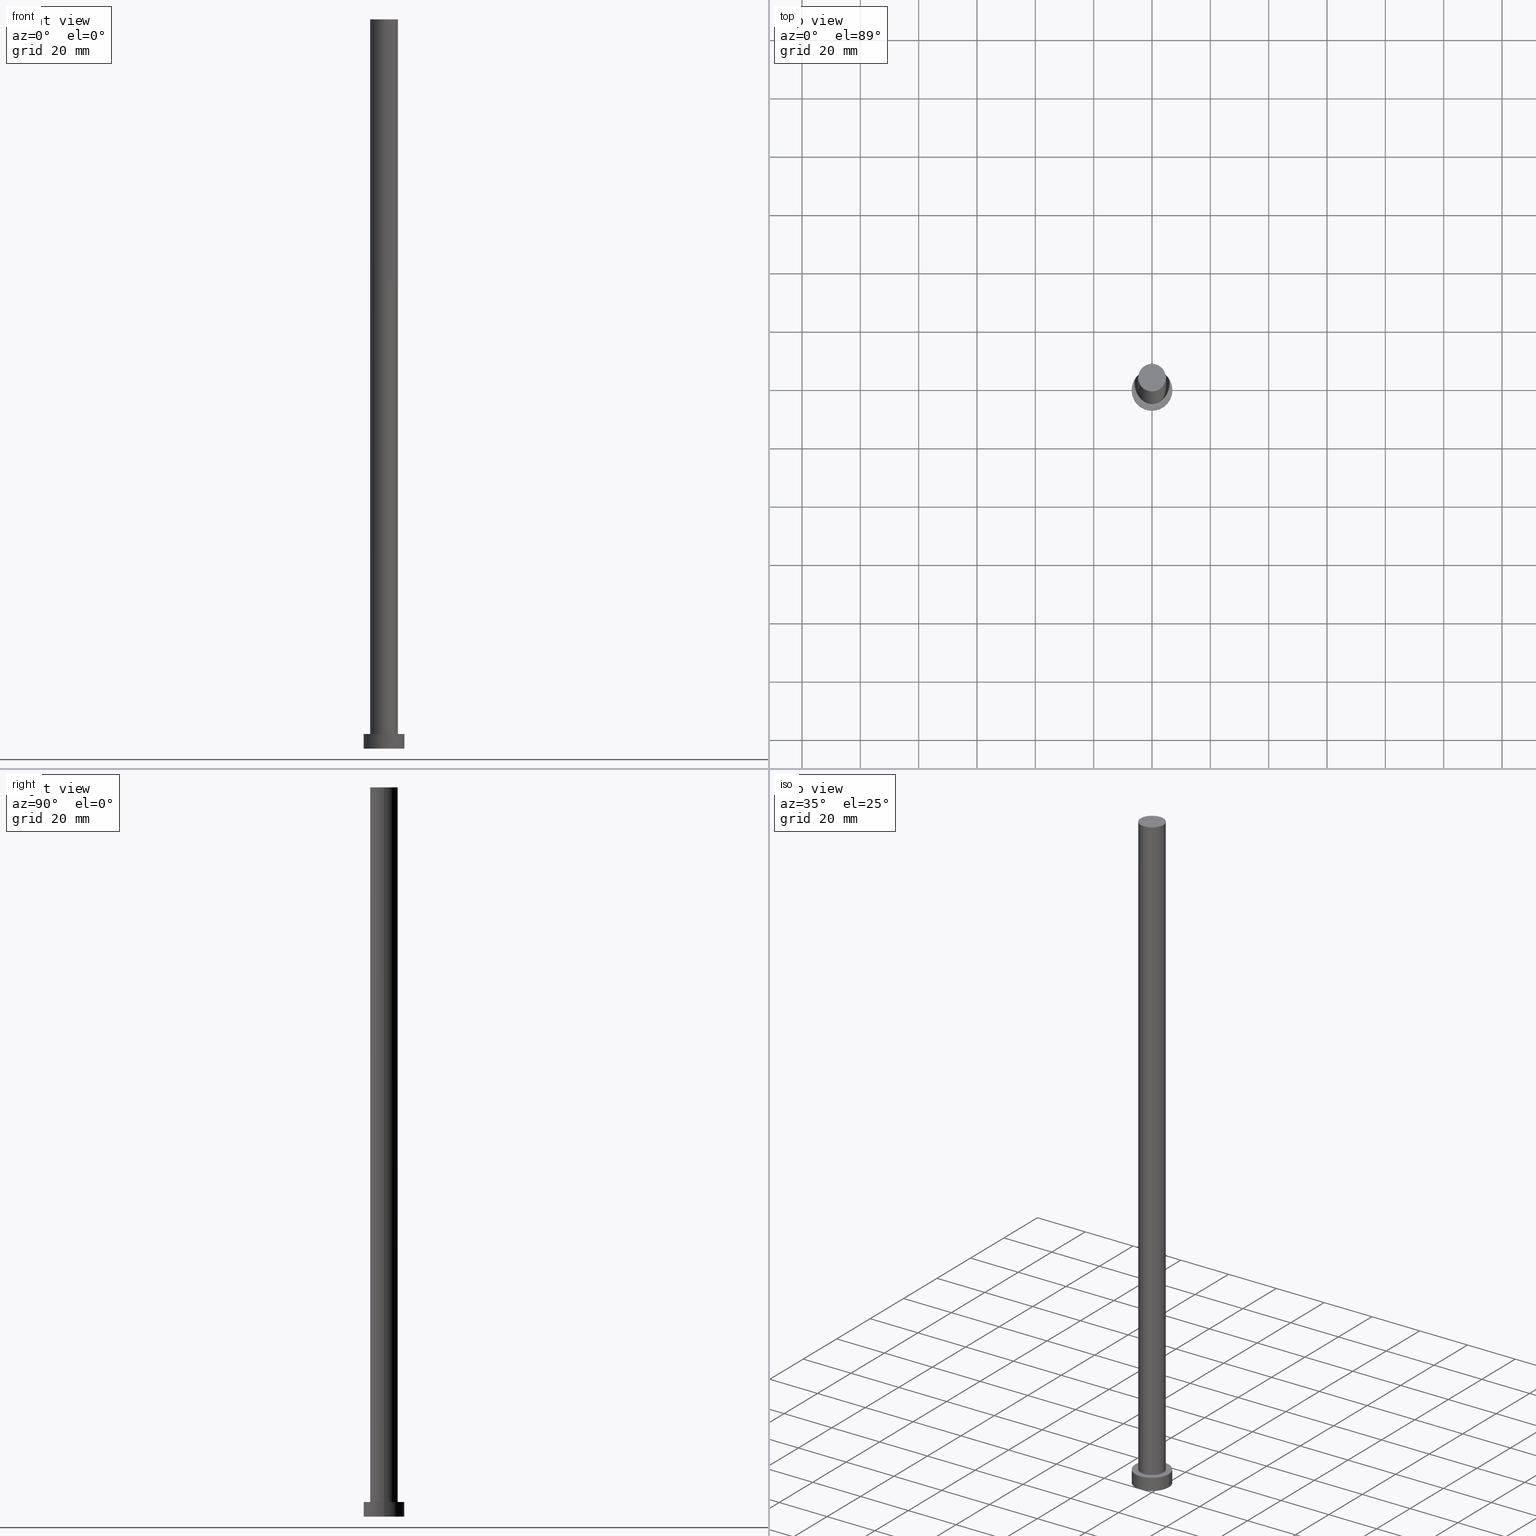
[diagram: canonical four-view strip — front | top / right | iso, engineering-drawing reading convention]
A machine part, canonical four-view strip (front | top / right | iso — engineering-drawing reading convention). The complete STEP part file that produces these views, byte-faithful:
ISO-10303-21;
HEADER;
FILE_DESCRIPTION (( 'STEP AP203' ),
    '1' );
FILE_NAME ('74f7.STEP',
    '2026-02-06T12:37:33',
    ( '' ),
    ( '' ),
    'SwSTEP 2.0',
    'SolidWorks 2019',
    '' );
FILE_SCHEMA (( 'CONFIG_CONTROL_DESIGN' ));
ENDSEC;

DATA;
#1 = CC_DESIGN_DATE_AND_TIME_ASSIGNMENT ( #67, #224, ( #144 ) ) ;
#2 = CIRCLE ( 'NONE', #12, 7.000000000000000000 ) ;
#3 = ORIENTED_EDGE ( 'NONE', *, *, #208, .F. ) ;
#4 = DIRECTION ( 'NONE',  ( -0.000000000000000000, -0.000000000000000000, -1.000000000000000000 ) ) ;
#5 = CALENDAR_DATE ( 2026, 6, 2 ) ;
#6 = ORIENTED_EDGE ( 'NONE', *, *, #65, .F. ) ;
#7 = DIRECTION ( 'NONE',  ( 1.000000000000000000, 0.000000000000000000, -0.000000000000000000 ) ) ;
#8 = AXIS2_PLACEMENT_3D ( 'NONE', #245, #32, #7 ) ;
#9 = APPROVAL_ROLE ( '' ) ;
#10 = DIRECTION ( 'NONE',  ( -0.000000000000000000, -0.000000000000000000, -1.000000000000000000 ) ) ;
#11 = DIRECTION ( 'NONE',  ( 0.000000000000000000, 0.000000000000000000, 1.000000000000000000 ) ) ;
#12 = AXIS2_PLACEMENT_3D ( 'NONE', #91, #186, #113 ) ;
#13 = MANIFOLD_SOLID_BREP ( 'P�idat vysunut�m3', #142 ) ;
#14 = PERSON_AND_ORGANIZATION_ROLE ( 'design_owner' ) ;
#15 = ORIENTED_EDGE ( 'NONE', *, *, #148, .T. ) ;
#16 = ORIENTED_EDGE ( 'NONE', *, *, #100, .T. ) ;
#17 = PRODUCT_DEFINITION_SHAPE ( 'NONE', 'NONE',  #144 ) ;
#18 = EDGE_LOOP ( 'NONE', ( #220, #77 ) ) ;
#19 = ORIENTED_EDGE ( 'NONE', *, *, #130, .T. ) ;
#20 = LOCAL_TIME ( 13, 37, 33.00000000000000000, #187 ) ;
#21 = PLANE ( 'NONE',  #206 ) ;
#22 = CC_DESIGN_PERSON_AND_ORGANIZATION_ASSIGNMENT ( #54, #14, ( #161 ) ) ;
#23 = SECURITY_CLASSIFICATION_LEVEL ( 'unclassified' ) ;
#24 = COORDINATED_UNIVERSAL_TIME_OFFSET ( 1, 0, .AHEAD. ) ;
#25 = CIRCLE ( 'NONE', #188, 4.750000000000000888 ) ;
#26 = ADVANCED_FACE ( 'NONE', ( #143 ), #99, .T. ) ;
#27 = CARTESIAN_POINT ( 'NONE',  ( 7.000000000000000000, 8.572527594031473190E-16, 5.000000000000000000 ) ) ;
#28 = ORIENTED_EDGE ( 'NONE', *, *, #68, .T. ) ;
#29 = CARTESIAN_POINT ( 'NONE',  ( 0.000000000000000000, 0.000000000000000000, 0.000000000000000000 ) ) ;
#30 = APPLICATION_PROTOCOL_DEFINITION ( 'international standard', 'config_control_design', 1994, #201 ) ;
#31 = SECURITY_CLASSIFICATION ( '', '', #23 ) ;
#32 = DIRECTION ( 'NONE',  ( 0.000000000000000000, 0.000000000000000000, 1.000000000000000000 ) ) ;
#33 = CARTESIAN_POINT ( 'NONE',  ( 7.000000000000000000, 8.572527594031473190E-16, 0.000000000000000000 ) ) ;
#34 = DIRECTION ( 'NONE',  ( 1.000000000000000000, 0.000000000000000000, 0.000000000000000000 ) ) ;
#35 = ORIENTED_EDGE ( 'NONE', *, *, #118, .F. ) ;
#36 = ORIENTED_EDGE ( 'NONE', *, *, #100, .F. ) ;
#37 = ORIENTED_EDGE ( 'NONE', *, *, #89, .T. ) ;
#38 = DIRECTION ( 'NONE',  ( -1.000000000000000000, 0.000000000000000000, 0.000000000000000000 ) ) ;
#39 = PERSON_AND_ORGANIZATION ( #250, #159 ) ;
#40 = CIRCLE ( 'NONE', #190, 4.750000000000000888 ) ;
#41 = CARTESIAN_POINT ( 'NONE',  ( 0.000000000000000000, 0.000000000000000000, 5.000000000000000000 ) ) ;
#42 = APPROVAL_STATUS ( 'not_yet_approved' ) ;
#43 = CARTESIAN_POINT ( 'NONE',  ( 0.000000000000000000, 0.000000000000000000, 250.0000000000000000 ) ) ;
#44 = LOCAL_TIME ( 13, 37, 33.00000000000000000, #210 ) ;
#45 = DIRECTION ( 'NONE',  ( 0.000000000000000000, 0.000000000000000000, 1.000000000000000000 ) ) ;
#46 = DATE_AND_TIME ( #88, #105 ) ;
#47 = APPROVAL ( #217, 'NEUR�EN�' ) ;
#48 = DIRECTION ( 'NONE',  ( 1.000000000000000000, 0.000000000000000000, 0.000000000000000000 ) ) ;
#49 =( NAMED_UNIT ( * ) PLANE_ANGLE_UNIT ( ) SI_UNIT ( $, .RADIAN. ) );
#50 = CARTESIAN_POINT ( 'NONE',  ( 0.000000000000000000, 0.000000000000000000, 5.000000000000000000 ) ) ;
#51 = CIRCLE ( 'NONE', #197, 7.000000000000000000 ) ;
#52 = FACE_OUTER_BOUND ( 'NONE', #59, .T. ) ;
#53 = DIRECTION ( 'NONE',  ( -0.000000000000000000, -0.000000000000000000, -1.000000000000000000 ) ) ;
#54 = PERSON_AND_ORGANIZATION ( #250, #159 ) ;
#55 = CC_DESIGN_APPROVAL ( #47, ( #144 ) ) ;
#56 = APPLICATION_CONTEXT ( 'configuration controlled 3d designs of mechanical parts and assemblies' ) ;
#57 = VERTEX_POINT ( 'NONE', #166 ) ;
#58 = PRODUCT_DEFINITION_FORMATION_WITH_SPECIFIED_SOURCE ( 'LIBOVOLN�', '', #161, .NOT_KNOWN. ) ;
#59 = EDGE_LOOP ( 'NONE', ( #178, #101, #86, #155 ) ) ;
#60 = EDGE_LOOP ( 'NONE', ( #35, #180 ) ) ;
#61 = CIRCLE ( 'NONE', #125, 4.750000000000000888 ) ;
#62 = CC_DESIGN_DATE_AND_TIME_ASSIGNMENT ( #46, #164, ( #31 ) ) ;
#63 = VERTEX_POINT ( 'NONE', #163 ) ;
#64 = APPROVAL_ROLE ( '' ) ;
#65 = EDGE_CURVE ( 'NONE', #141, #158, #185, .T. ) ;
#66 = PERSON_AND_ORGANIZATION_ROLE ( 'classification_officer' ) ;
#67 = DATE_AND_TIME ( #107, #75 ) ;
#68 = EDGE_CURVE ( 'NONE', #63, #141, #61, .T. ) ;
#69 = AXIS2_PLACEMENT_3D ( 'NONE', #43, #109, #38 ) ;
#70 = FACE_OUTER_BOUND ( 'NONE', #60, .T. ) ;
#71 = CC_DESIGN_PERSON_AND_ORGANIZATION_ASSIGNMENT ( #126, #203, ( #58 ) ) ;
#72 = DIRECTION ( 'NONE',  ( 1.000000000000000000, 0.000000000000000000, 0.000000000000000000 ) ) ;
#73 = CARTESIAN_POINT ( 'NONE',  ( 0.000000000000000000, 0.000000000000000000, 5.000000000000000000 ) ) ;
#74 =( LENGTH_UNIT ( ) NAMED_UNIT ( * ) SI_UNIT ( .MILLI., .METRE. ) );
#75 = LOCAL_TIME ( 13, 37, 33.00000000000000000, #24 ) ;
#76 = ADVANCED_FACE ( 'NONE', ( #202, #81 ), #21, .T. ) ;
#77 = ORIENTED_EDGE ( 'NONE', *, *, #192, .F. ) ;
#78 = APPROVAL ( #242, 'NEUR�EN�' ) ;
#79 = ORIENTED_EDGE ( 'NONE', *, *, #195, .F. ) ;
#80 = PRODUCT_RELATED_PRODUCT_CATEGORY ( 'detail', '', ( #161 ) ) ;
#81 = FACE_OUTER_BOUND ( 'NONE', #157, .T. ) ;
#82 = PERSON_AND_ORGANIZATION ( #250, #159 ) ;
#83 = AXIS2_PLACEMENT_3D ( 'NONE', #50, #133, #209 ) ;
#84 = CC_DESIGN_PERSON_AND_ORGANIZATION_ASSIGNMENT ( #229, #94, ( #144 ) ) ;
#85 = COORDINATED_UNIVERSAL_TIME_OFFSET ( 1, 0, .AHEAD. ) ;
#86 = ORIENTED_EDGE ( 'NONE', *, *, #208, .T. ) ;
#87 = CARTESIAN_POINT ( 'NONE',  ( 4.750000000000000888, 5.817072295949928412E-16, 250.0000000000000000 ) ) ;
#88 = CALENDAR_DATE ( 2026, 6, 2 ) ;
#89 = EDGE_CURVE ( 'NONE', #131, #253, #222, .T. ) ;
#90 = CC_DESIGN_APPROVAL ( #177, ( #58 ) ) ;
#91 = CARTESIAN_POINT ( 'NONE',  ( 0.000000000000000000, 0.000000000000000000, 5.000000000000000000 ) ) ;
#92 = DATE_AND_TIME ( #5, #20 ) ;
#93 = CARTESIAN_POINT ( 'NONE',  ( -4.750000000000000888, 0.000000000000000000, 250.0000000000000000 ) ) ;
#94 = PERSON_AND_ORGANIZATION_ROLE ( 'creator' ) ;
#95 = CARTESIAN_POINT ( 'NONE',  ( 0.000000000000000000, 0.000000000000000000, 5.000000000000000000 ) ) ;
#96 = CARTESIAN_POINT ( 'NONE',  ( -7.000000000000000000, 0.000000000000000000, 0.000000000000000000 ) ) ;
#97 = VECTOR ( 'NONE', #170, 1000.000000000000000 ) ;
#98 = PERSON_AND_ORGANIZATION ( #250, #159 ) ;
#99 = CYLINDRICAL_SURFACE ( 'NONE', #69, 4.750000000000000888 ) ;
#100 = EDGE_CURVE ( 'NONE', #63, #181, #132, .T. ) ;
#101 = ORIENTED_EDGE ( 'NONE', *, *, #137, .F. ) ;
#102 = APPROVAL_PERSON_ORGANIZATION ( #98, #47, #9 ) ;
#103 = ADVANCED_FACE ( 'NONE', ( #70 ), #211, .F. ) ;
#104 = EDGE_LOOP ( 'NONE', ( #6, #196, #16, #19 ) ) ;
#105 = LOCAL_TIME ( 13, 37, 33.00000000000000000, #85 ) ;
#106 = DIRECTION ( 'NONE',  ( 0.000000000000000000, 0.000000000000000000, 1.000000000000000000 ) ) ;
#107 = CALENDAR_DATE ( 2026, 6, 2 ) ;
#108 = AXIS2_PLACEMENT_3D ( 'NONE', #95, #10, #233 ) ;
#109 = DIRECTION ( 'NONE',  ( -0.000000000000000000, -0.000000000000000000, -1.000000000000000000 ) ) ;
#110 = PLANE ( 'NONE',  #173 ) ;
#111 = CARTESIAN_POINT ( 'NONE',  ( 0.000000000000000000, 0.000000000000000000, 250.0000000000000000 ) ) ;
#112 = ORIENTED_EDGE ( 'NONE', *, *, #148, .F. ) ;
#113 = DIRECTION ( 'NONE',  ( 1.000000000000000000, 0.000000000000000000, 0.000000000000000000 ) ) ;
#114 =( NAMED_UNIT ( * ) SI_UNIT ( $, .STERADIAN. ) SOLID_ANGLE_UNIT ( ) );
#115 = CARTESIAN_POINT ( 'NONE',  ( 0.000000000000000000, 0.000000000000000000, 5.000000000000000000 ) ) ;
#116 = FACE_OUTER_BOUND ( 'NONE', #234, .T. ) ;
#117 = MECHANICAL_CONTEXT ( 'NONE', #201, 'mechanical' ) ;
#118 = EDGE_CURVE ( 'NONE', #219, #253, #149, .T. ) ;
#119 = AXIS2_PLACEMENT_3D ( 'NONE', #111, #174, #215 ) ;
#120 = DESIGN_CONTEXT ( 'detailed design', #56, 'design' ) ;
#121 = DIRECTION ( 'NONE',  ( 1.000000000000000000, 0.000000000000000000, 0.000000000000000000 ) ) ;
#122 = CC_DESIGN_APPROVAL ( #78, ( #31 ) ) ;
#123 = DATE_AND_TIME ( #127, #205 ) ;
#124 = DIRECTION ( 'NONE',  ( -0.000000000000000000, -0.000000000000000000, -1.000000000000000000 ) ) ;
#125 = AXIS2_PLACEMENT_3D ( 'NONE', #243, #240, #121 ) ;
#126 = PERSON_AND_ORGANIZATION ( #250, #159 ) ;
#127 = CALENDAR_DATE ( 2026, 6, 2 ) ;
#128 = PERSON_AND_ORGANIZATION ( #250, #159 ) ;
#129 = DIRECTION ( 'NONE',  ( 1.000000000000000000, 0.000000000000000000, 0.000000000000000000 ) ) ;
#130 = EDGE_CURVE ( 'NONE', #181, #158, #40, .T. ) ;
#131 = VERTEX_POINT ( 'NONE', #27 ) ;
#132 = LINE ( 'NONE', #93, #218 ) ;
#133 = DIRECTION ( 'NONE',  ( 0.000000000000000000, 0.000000000000000000, 1.000000000000000000 ) ) ;
#134 = CYLINDRICAL_SURFACE ( 'NONE', #108, 7.000000000000000000 ) ;
#135 = DIRECTION ( 'NONE',  ( 0.000000000000000000, 0.000000000000000000, 1.000000000000000000 ) ) ;
#136 = ORIENTED_EDGE ( 'NONE', *, *, #65, .T. ) ;
#137 = EDGE_CURVE ( 'NONE', #57, #131, #2, .T. ) ;
#138 = CC_DESIGN_PERSON_AND_ORGANIZATION_ASSIGNMENT ( #82, #66, ( #31 ) ) ;
#139 = ORIENTED_EDGE ( 'NONE', *, *, #192, .T. ) ;
#140 = AXIS2_PLACEMENT_3D ( 'NONE', #216, #135, #34 ) ;
#141 = VERTEX_POINT ( 'NONE', #189 ) ;
#142 = CLOSED_SHELL ( 'NONE', ( #239, #198, #207, #76, #103, #26, #165 ) ) ;
#143 = FACE_OUTER_BOUND ( 'NONE', #104, .T. ) ;
#144 = PRODUCT_DEFINITION ( 'NEZN�M�', '', #58, #120 ) ;
#145 = DIRECTION ( 'NONE',  ( 1.000000000000000000, 0.000000000000000000, -0.000000000000000000 ) ) ;
#146 = PERSON_AND_ORGANIZATION_ROLE ( 'creator' ) ;
#147 = CARTESIAN_POINT ( 'NONE',  ( 0.000000000000000000, 0.000000000000000000, 250.0000000000000000 ) ) ;
#148 = EDGE_CURVE ( 'NONE', #131, #57, #51, .T. ) ;
#149 = CIRCLE ( 'NONE', #156, 7.000000000000000000 ) ;
#150 = DIRECTION ( 'NONE',  ( 0.000000000000000000, 0.000000000000000000, 1.000000000000000000 ) ) ;
#151 = APPROVAL_DATE_TIME ( #92, #47 ) ;
#152 = DIRECTION ( 'NONE',  ( 1.000000000000000000, 0.000000000000000000, -0.000000000000000000 ) ) ;
#153 = DIRECTION ( 'NONE',  ( -1.000000000000000000, 0.000000000000000000, 0.000000000000000000 ) ) ;
#154 = CARTESIAN_POINT ( 'NONE',  ( 0.000000000000000000, 0.000000000000000000, 0.000000000000000000 ) ) ;
#155 = ORIENTED_EDGE ( 'NONE', *, *, #118, .T. ) ;
#156 = AXIS2_PLACEMENT_3D ( 'NONE', #29, #150, #129 ) ;
#157 = EDGE_LOOP ( 'NONE', ( #179, #15 ) ) ;
#158 = VERTEX_POINT ( 'NONE', #191 ) ;
#159 = ORGANIZATION ( 'NEUR�EN�', 'NEUR�EN�', '' ) ;
#160 = ORIENTED_EDGE ( 'NONE', *, *, #195, .T. ) ;
#161 = PRODUCT ( '74f7', '74f7', '', ( #117 ) ) ;
#162 = APPROVAL_DATE_TIME ( #123, #177 ) ;
#163 = CARTESIAN_POINT ( 'NONE',  ( -4.750000000000000888, 0.000000000000000000, 250.0000000000000000 ) ) ;
#164 = DATE_TIME_ROLE ( 'classification_date' ) ;
#165 = ADVANCED_FACE ( 'NONE', ( #213 ), #110, .T. ) ;
#166 = CARTESIAN_POINT ( 'NONE',  ( -7.000000000000000000, 0.000000000000000000, 5.000000000000000000 ) ) ;
#167 = APPROVAL_DATE_TIME ( #226, #78 ) ;
#168 = UNCERTAINTY_MEASURE_WITH_UNIT (LENGTH_MEASURE( 1.000000000000000082E-05 ), #74, 'distance_accuracy_value', 'NONE');
#169 = CARTESIAN_POINT ( 'NONE',  ( 0.000000000000000000, 0.000000000000000000, 5.000000000000000000 ) ) ;
#170 = DIRECTION ( 'NONE',  ( -0.000000000000000000, -0.000000000000000000, -1.000000000000000000 ) ) ;
#171 = DIRECTION ( 'NONE',  ( 0.000000000000000000, 0.000000000000000000, 1.000000000000000000 ) ) ;
#172 = FACE_OUTER_BOUND ( 'NONE', #254, .T. ) ;
#173 = AXIS2_PLACEMENT_3D ( 'NONE', #147, #227, #152 ) ;
#174 = DIRECTION ( 'NONE',  ( -0.000000000000000000, -0.000000000000000000, -1.000000000000000000 ) ) ;
#175 = VECTOR ( 'NONE', #124, 1000.000000000000000 ) ;
#176 = APPLICATION_PROTOCOL_DEFINITION ( 'international standard', 'config_control_design', 1994, #56 ) ;
#177 = APPROVAL ( #42, 'NEUR�EN�' ) ;
#178 = ORIENTED_EDGE ( 'NONE', *, *, #89, .F. ) ;
#179 = ORIENTED_EDGE ( 'NONE', *, *, #137, .T. ) ;
#180 = ORIENTED_EDGE ( 'NONE', *, *, #252, .F. ) ;
#181 = VERTEX_POINT ( 'NONE', #230 ) ;
#182 = COORDINATED_UNIVERSAL_TIME_OFFSET ( 1, 0, .AHEAD. ) ;
#183 = VECTOR ( 'NONE', #53, 1000.000000000000000 ) ;
#184 = SHAPE_DEFINITION_REPRESENTATION ( #17, #204 ) ;
#185 = LINE ( 'NONE', #87, #175 ) ;
#186 = DIRECTION ( 'NONE',  ( 0.000000000000000000, 0.000000000000000000, 1.000000000000000000 ) ) ;
#187 = COORDINATED_UNIVERSAL_TIME_OFFSET ( 1, 0, .AHEAD. ) ;
#188 = AXIS2_PLACEMENT_3D ( 'NONE', #194, #11, #248 ) ;
#189 = CARTESIAN_POINT ( 'NONE',  ( 4.750000000000000888, 5.817072295949928412E-16, 250.0000000000000000 ) ) ;
#190 = AXIS2_PLACEMENT_3D ( 'NONE', #115, #45, #48 ) ;
#191 = CARTESIAN_POINT ( 'NONE',  ( 4.750000000000000888, 5.817072295949928412E-16, 5.000000000000000000 ) ) ;
#192 = EDGE_CURVE ( 'NONE', #158, #181, #221, .T. ) ;
#193 = DIRECTION ( 'NONE',  ( -0.000000000000000000, -0.000000000000000000, -1.000000000000000000 ) ) ;
#194 = CARTESIAN_POINT ( 'NONE',  ( 0.000000000000000000, 0.000000000000000000, 250.0000000000000000 ) ) ;
#195 = EDGE_CURVE ( 'NONE', #141, #63, #25, .T. ) ;
#196 = ORIENTED_EDGE ( 'NONE', *, *, #68, .F. ) ;
#197 = AXIS2_PLACEMENT_3D ( 'NONE', #169, #247, #72 ) ;
#198 = ADVANCED_FACE ( 'NONE', ( #116 ), #231, .T. ) ;
#199 = AXIS2_PLACEMENT_3D ( 'NONE', #154, #171, #214 ) ;
#200 = PERSON_AND_ORGANIZATION ( #250, #159 ) ;
#201 = APPLICATION_CONTEXT ( 'configuration controlled 3d designs of mechanical parts and assemblies' ) ;
#202 = FACE_BOUND ( 'NONE', #18, .T. ) ;
#203 = PERSON_AND_ORGANIZATION_ROLE ( 'design_supplier' ) ;
#204 = ADVANCED_BREP_SHAPE_REPRESENTATION ( '74f7', ( #13, #140 ), #244 ) ;
#205 = LOCAL_TIME ( 13, 37, 33.00000000000000000, #182 ) ;
#206 = AXIS2_PLACEMENT_3D ( 'NONE', #41, #106, #145 ) ;
#207 = ADVANCED_FACE ( 'NONE', ( #52 ), #134, .T. ) ;
#208 = EDGE_CURVE ( 'NONE', #57, #219, #236, .T. ) ;
#209 = DIRECTION ( 'NONE',  ( 1.000000000000000000, 0.000000000000000000, 0.000000000000000000 ) ) ;
#210 = COORDINATED_UNIVERSAL_TIME_OFFSET ( 1, 0, .AHEAD. ) ;
#211 = PLANE ( 'NONE',  #8 ) ;
#212 = AXIS2_PLACEMENT_3D ( 'NONE', #73, #193, #153 ) ;
#213 = FACE_OUTER_BOUND ( 'NONE', #235, .T. ) ;
#214 = DIRECTION ( 'NONE',  ( 1.000000000000000000, 0.000000000000000000, 0.000000000000000000 ) ) ;
#215 = DIRECTION ( 'NONE',  ( -1.000000000000000000, 0.000000000000000000, 0.000000000000000000 ) ) ;
#216 = CARTESIAN_POINT ( 'NONE',  ( 0.000000000000000000, 0.000000000000000000, 0.000000000000000000 ) ) ;
#217 = APPROVAL_STATUS ( 'not_yet_approved' ) ;
#218 = VECTOR ( 'NONE', #4, 1000.000000000000000 ) ;
#219 = VERTEX_POINT ( 'NONE', #96 ) ;
#220 = ORIENTED_EDGE ( 'NONE', *, *, #130, .F. ) ;
#221 = CIRCLE ( 'NONE', #83, 4.750000000000000888 ) ;
#222 = LINE ( 'NONE', #228, #97 ) ;
#223 = APPROVAL_ROLE ( '' ) ;
#224 = DATE_TIME_ROLE ( 'creation_date' ) ;
#225 = CC_DESIGN_PERSON_AND_ORGANIZATION_ASSIGNMENT ( #200, #146, ( #58 ) ) ;
#226 = DATE_AND_TIME ( #241, #44 ) ;
#227 = DIRECTION ( 'NONE',  ( 0.000000000000000000, 0.000000000000000000, 1.000000000000000000 ) ) ;
#228 = CARTESIAN_POINT ( 'NONE',  ( 7.000000000000000000, 8.572527594031473190E-16, 5.000000000000000000 ) ) ;
#229 = PERSON_AND_ORGANIZATION ( #250, #159 ) ;
#230 = CARTESIAN_POINT ( 'NONE',  ( -4.750000000000000888, 0.000000000000000000, 5.000000000000000000 ) ) ;
#231 = CYLINDRICAL_SURFACE ( 'NONE', #212, 7.000000000000000000 ) ;
#232 = CIRCLE ( 'NONE', #199, 7.000000000000000000 ) ;
#233 = DIRECTION ( 'NONE',  ( -1.000000000000000000, 0.000000000000000000, 0.000000000000000000 ) ) ;
#234 = EDGE_LOOP ( 'NONE', ( #112, #37, #255, #3 ) ) ;
#235 = EDGE_LOOP ( 'NONE', ( #28, #160 ) ) ;
#236 = LINE ( 'NONE', #246, #183 ) ;
#237 = APPROVAL_PERSON_ORGANIZATION ( #128, #78, #223 ) ;
#238 = CC_DESIGN_SECURITY_CLASSIFICATION ( #31, ( #58 ) ) ;
#239 = ADVANCED_FACE ( 'NONE', ( #172 ), #251, .T. ) ;
#240 = DIRECTION ( 'NONE',  ( 0.000000000000000000, 0.000000000000000000, 1.000000000000000000 ) ) ;
#241 = CALENDAR_DATE ( 2026, 6, 2 ) ;
#242 = APPROVAL_STATUS ( 'not_yet_approved' ) ;
#243 = CARTESIAN_POINT ( 'NONE',  ( 0.000000000000000000, 0.000000000000000000, 250.0000000000000000 ) ) ;
#244 =( GEOMETRIC_REPRESENTATION_CONTEXT ( 3 ) GLOBAL_UNCERTAINTY_ASSIGNED_CONTEXT ( ( #168 ) ) GLOBAL_UNIT_ASSIGNED_CONTEXT ( ( #74, #49, #114 ) ) REPRESENTATION_CONTEXT ( 'NONE', 'WORKASPACE' ) );
#245 = CARTESIAN_POINT ( 'NONE',  ( 0.000000000000000000, 0.000000000000000000, 0.000000000000000000 ) ) ;
#246 = CARTESIAN_POINT ( 'NONE',  ( -7.000000000000000000, 0.000000000000000000, 5.000000000000000000 ) ) ;
#247 = DIRECTION ( 'NONE',  ( 0.000000000000000000, 0.000000000000000000, 1.000000000000000000 ) ) ;
#248 = DIRECTION ( 'NONE',  ( 1.000000000000000000, 0.000000000000000000, 0.000000000000000000 ) ) ;
#249 = APPROVAL_PERSON_ORGANIZATION ( #39, #177, #64 ) ;
#250 = PERSON ( 'NEUR�EN�', 'NEUR�EN�', 'NEUR�EN�', ('NEUR�EN�'), ('NEUR�EN�'), ('NEUR�EN�') ) ;
#251 = CYLINDRICAL_SURFACE ( 'NONE', #119, 4.750000000000000888 ) ;
#252 = EDGE_CURVE ( 'NONE', #253, #219, #232, .T. ) ;
#253 = VERTEX_POINT ( 'NONE', #33 ) ;
#254 = EDGE_LOOP ( 'NONE', ( #79, #136, #139, #36 ) ) ;
#255 = ORIENTED_EDGE ( 'NONE', *, *, #252, .T. ) ;
ENDSEC;
END-ISO-10303-21;
